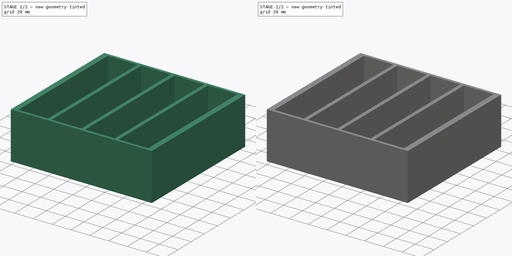
[diagram: build sequence overview — one tinted view per stage of 2, left to right]
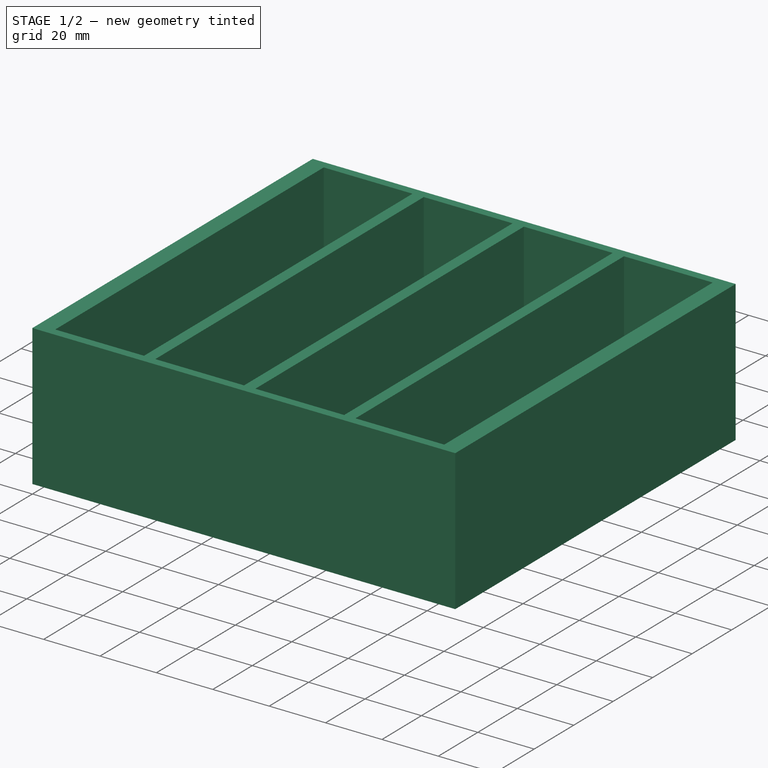
[diagram: stage 1 of 2 — iso view after this stage's code; geometry added in this stage tinted green]
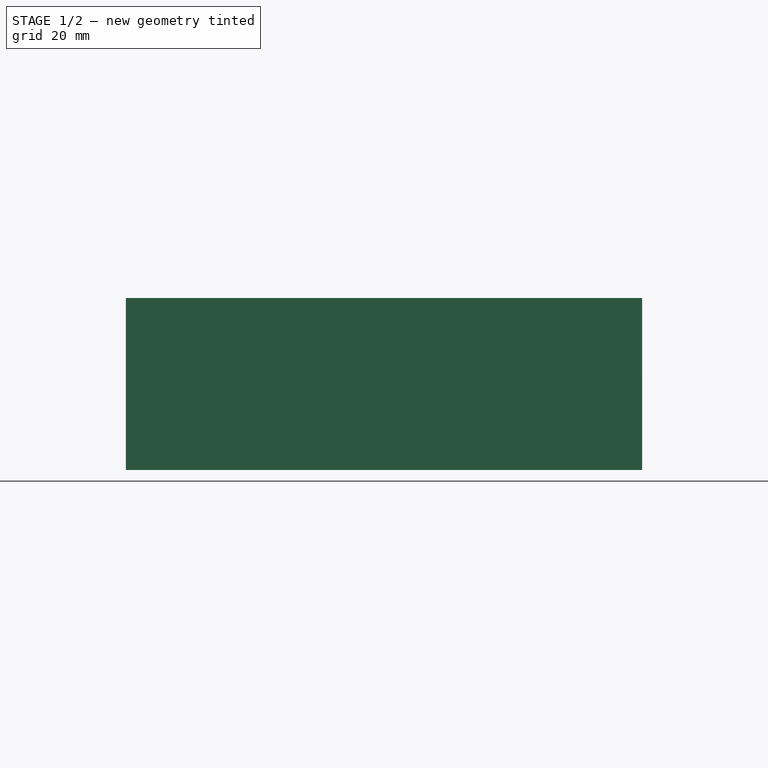
[diagram: stage 1 of 2 — front view after this stage's code; geometry added in this stage tinted green]
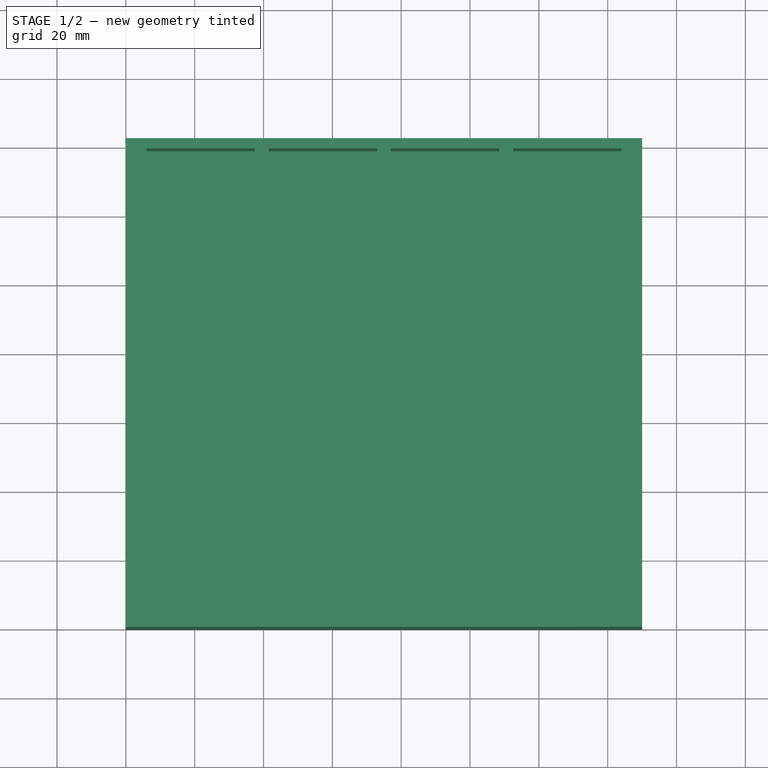
[diagram: stage 1 of 2 — top view after this stage's code; geometry added in this stage tinted green]
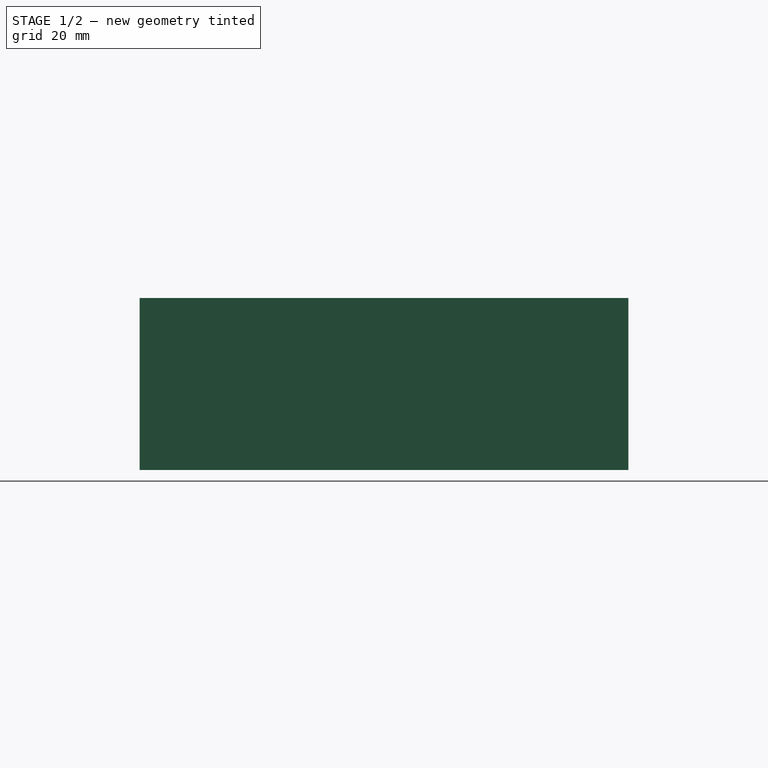
[diagram: stage 1 of 2 — right view after this stage's code; geometry added in this stage tinted green]
FCSTD DOCUMENT  (FreeCAD 0.16R6712 (Git))
Label: batterymount_top
License: All rights reserved
LicenseURL: http://en.wikipedia.org/wiki/All_rights_reserved
objects: Sketcher::SketchObject×3, PartDesign::Pocket×2, PartDesign::Pad×1
note: 9 computed .brp shape members not serialized (recipe doc carries the construction recipe); baked Part::Feature solids carry a one-line shape summary decoded from their .brp

FEATURE [Sketcher::SketchObject] Sketch
  sketch-geometry (4):
    g0: LineSegment StartX=0 StartY=0 StartZ=0 EndX=150 EndY=0 EndZ=0
    g1: LineSegment StartX=150 StartY=0 StartZ=0 EndX=150 EndY=142 EndZ=0
    g2: LineSegment StartX=150 StartY=142 StartZ=0 EndX=0 EndY=142 EndZ=0
    g3: LineSegment StartX=0 StartY=142 StartZ=0 EndX=0 EndY=0 EndZ=0
  constraints (11):
    c: Coincident(g0,g1)
    c: Coincident(g1,g2)
    c: Coincident(g2,g3)
    c: Coincident(g3,g0)
    c: Horizontal(g0)
    c: Horizontal(g2)
    c: Vertical(g1)
    c: Vertical(g3)
    c: Coincident(g0,g-1)
    c: DistanceX(g0,g0) = 150
    c: DistanceY(g3,g3) = 142
FEATURE [PartDesign::Pad] Pad
  Length = 50
  Length2 = 100
  Sketch = -> Sketch
  Type = 0
FEATURE [Sketcher::SketchObject] Sketch001
  Placement = pos=(0,0,50) rot=(0,0,1;0rad)
  Support = -> Pad [Face6]
  sketch-geometry (16):
    g0: LineSegment StartX=6 StartY=139 StartZ=0 EndX=37.5 EndY=139 EndZ=0
    g1: LineSegment StartX=37.5 StartY=139 StartZ=0 EndX=37.5 EndY=3 EndZ=0
    g2: LineSegment StartX=37.5 StartY=3 StartZ=0 EndX=6 EndY=3 EndZ=0
    g3: LineSegment StartX=6 StartY=3 StartZ=0 EndX=6 EndY=139 EndZ=0
    g4: LineSegment StartX=41.5 StartY=139 StartZ=0 EndX=73 EndY=139 EndZ=0
    g5: LineSegment StartX=73 StartY=139 StartZ=0 EndX=73 EndY=3 EndZ=0
    g6: LineSegment StartX=73 StartY=3 StartZ=0 EndX=41.5 EndY=3 EndZ=0
    g7: LineSegment StartX=41.5 StartY=3 StartZ=0 EndX=41.5 EndY=139 EndZ=0
    g8: LineSegment StartX=77 StartY=139 StartZ=0 EndX=108.5 EndY=139 EndZ=0
    g9: LineSegment StartX=108.5 StartY=139 StartZ=0 EndX=108.5 EndY=3 EndZ=0
    g10: LineSegment StartX=108.5 StartY=3 StartZ=0 EndX=77 EndY=3 EndZ=0
    g11: LineSegment StartX=77 StartY=3 StartZ=0 EndX=77 EndY=139 EndZ=0
    g12: LineSegment StartX=112.5 StartY=139 StartZ=0 EndX=144 EndY=139 EndZ=0
    g13: LineSegment StartX=144 StartY=139 StartZ=0 EndX=144 EndY=3 EndZ=0
    g14: LineSegment StartX=144 StartY=3 StartZ=0 EndX=112.5 EndY=3 EndZ=0
    g15: LineSegment StartX=112.5 StartY=3 StartZ=0 EndX=112.5 EndY=139 EndZ=0
  constraints (48):
    c: Coincident(g0,g1)
    c: Coincident(g1,g2)
    c: Coincident(g2,g3)
    c: Coincident(g3,g0)
    c: Horizontal(g0)
    c: Horizontal(g2)
    c: Vertical(g1)
    c: Vertical(g3)
    c: Coincident(g4,g5)
    c: Coincident(g5,g6)
    c: Coincident(g6,g7)
    c: Coincident(g7,g4)
    c: Horizontal(g4)
    c: Horizontal(g6)
    c: Vertical(g5)
    c: Vertical(g7)
    c: Coincident(g8,g9)
    c: Coincident(g9,g10)
    c: Coincident(g10,g11)
    c: Coincident(g11,g8)
    c: Horizontal(g8)
    c: Horizontal(g10)
    c: Vertical(g9)
    c: Vertical(g11)
    c: Coincident(g12,g13)
    c: Coincident(g13,g14)
    c: Coincident(g14,g15)
    c: Coincident(g15,g12)
    c: Horizontal(g12)
    c: Horizontal(g14)
    c: Vertical(g13)
    c: Vertical(g15)
    c: Equal(g7,g3)
    c: Equal(g3,g11)
    c: Equal(g11,g15)
    c: DistanceX(g-1,g2) = 6
    c: DistanceX(g2,g2) = 31.5
    c: Equal(g2,g6)
    c: Equal(g6,g10)
    c: Equal(g10,g14)
    c: DistanceX(g1,g6) = 4
    c: DistanceY(g3,g3) = 136
    c: DistanceY(g-1,g2) = 3
    c: DistanceY(g-1,g6) = 3
    c: DistanceY(g-1,g10) = 3
    c: DistanceX(g5,g10) = 4
    c: DistanceY(g14) = 3
    c: DistanceX(g9,g14) = 4
FEATURE [PartDesign::Pocket] Pocket
  Length = 45
  Sketch = -> Sketch001
  Type = 0
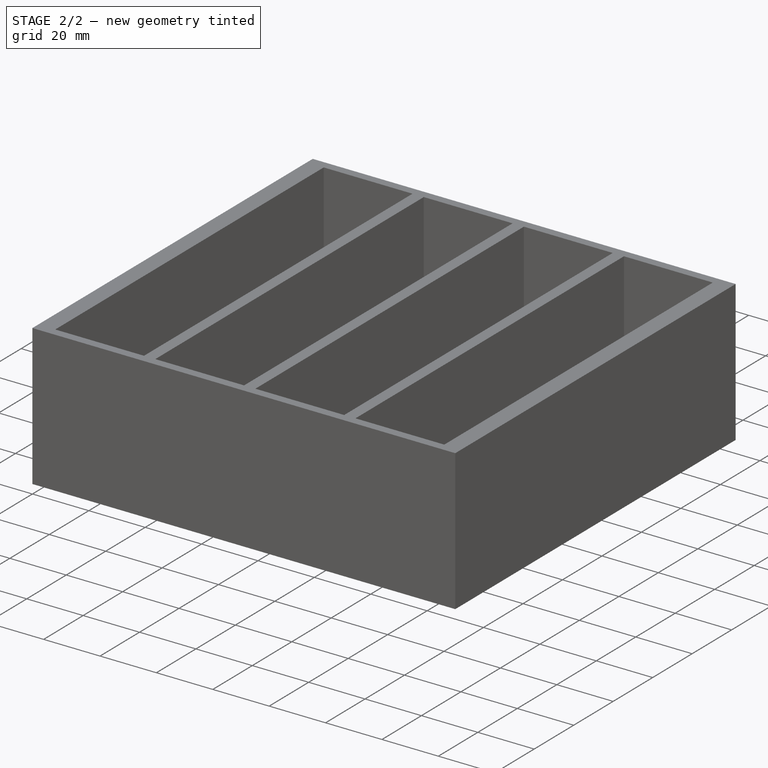
[diagram: stage 2 of 2 — iso view after this stage's code; geometry added in this stage tinted green]
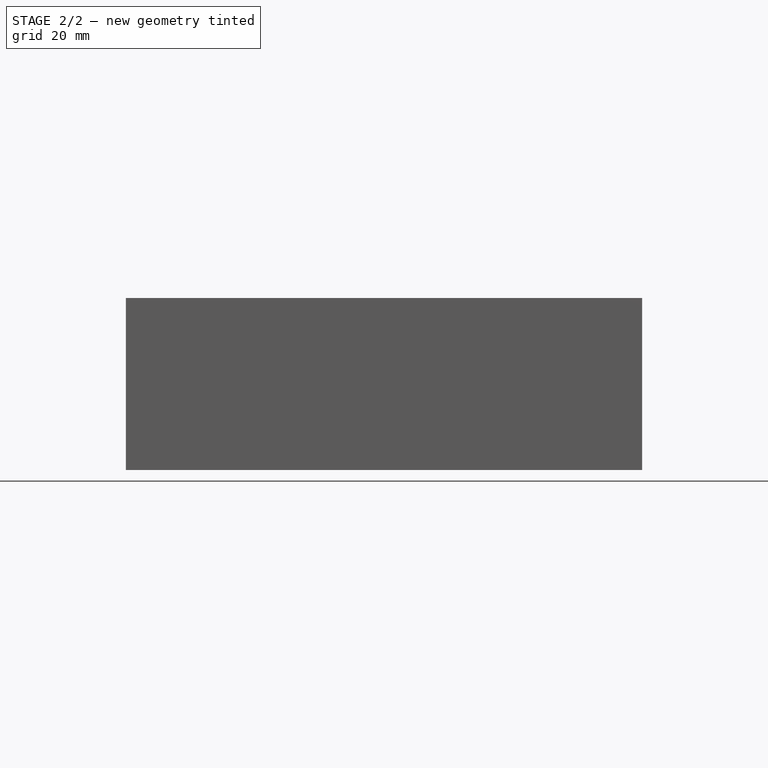
[diagram: stage 2 of 2 — front view after this stage's code; geometry added in this stage tinted green]
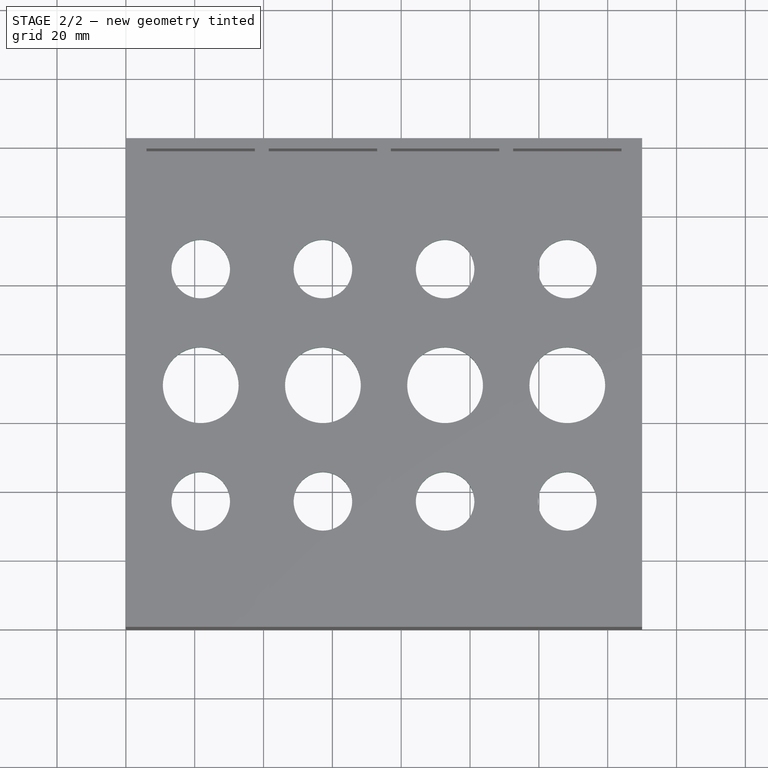
[diagram: stage 2 of 2 — top view after this stage's code; geometry added in this stage tinted green]
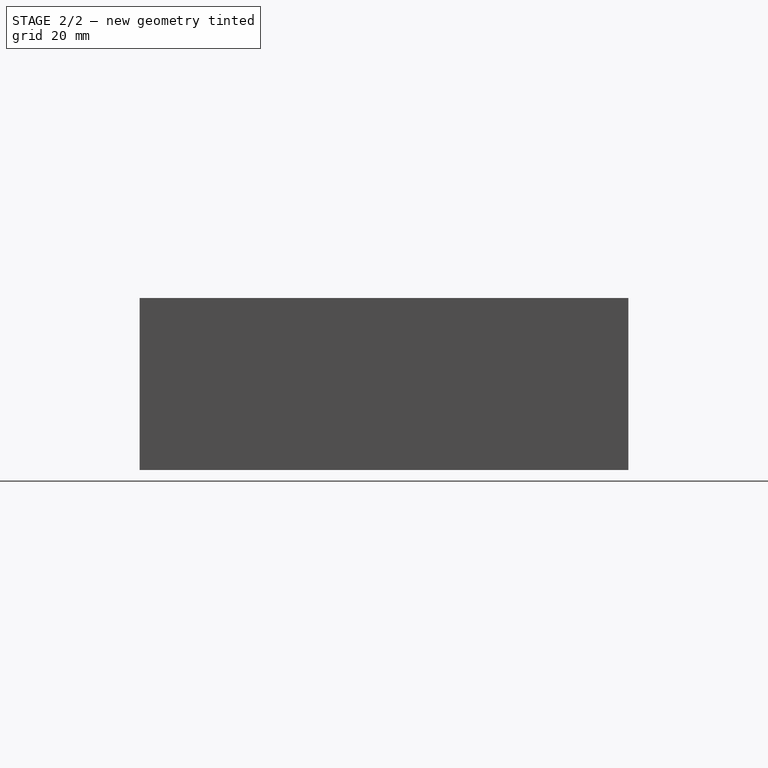
[diagram: stage 2 of 2 — right view after this stage's code; geometry added in this stage tinted green]
FEATURE [Sketcher::SketchObject] Sketch002
  Placement = pos=(0,0,5) rot=(0,0,1;0rad)
  Support = -> Pocket [Face26]
  sketch-geometry (12):
    g0: Circle CenterX=21.75 CenterY=37.25 CenterZ=0 NormalX=0 NormalY=0 NormalZ=1 Radius=8.5
    g1: Circle CenterX=21.75 CenterY=71 CenterZ=0 NormalX=0 NormalY=0 NormalZ=1 Radius=11
    g2: Circle CenterX=21.75 CenterY=104.75 CenterZ=0 NormalX=0 NormalY=0 NormalZ=1 Radius=8.5
    g3: Circle CenterX=57.25 CenterY=37.25 CenterZ=0 NormalX=0 NormalY=0 NormalZ=1 Radius=8.5
    g4: Circle CenterX=57.25 CenterY=71 CenterZ=0 NormalX=0 NormalY=0 NormalZ=1 Radius=11
    g5: Circle CenterX=57.25 CenterY=104.75 CenterZ=0 NormalX=0 NormalY=0 NormalZ=1 Radius=8.5
    g6: Circle CenterX=92.75 CenterY=37.25 CenterZ=0 NormalX=0 NormalY=0 NormalZ=1 Radius=8.5
    g7: Circle CenterX=92.75 CenterY=71 CenterZ=0 NormalX=0 NormalY=0 NormalZ=1 Radius=11
    g8: Circle CenterX=92.75 CenterY=104.75 CenterZ=0 NormalX=0 NormalY=0 NormalZ=1 Radius=8.5
    g9: Circle CenterX=128.25 CenterY=37.25 CenterZ=0 NormalX=0 NormalY=0 NormalZ=1 Radius=8.5
    g10: Circle CenterX=128.25 CenterY=71 CenterZ=0 NormalX=0 NormalY=0 NormalZ=1 Radius=11
    g11: Circle CenterX=128.25 CenterY=104.75 CenterZ=0 NormalX=0 NormalY=0 NormalZ=1 Radius=8.5
  constraints (36):
    c: Radius(g0) = 8.5
    c: Radius(g1) = 11
    c: Equal(g0,g3)
    c: Equal(g0,g6)
    c: Equal(g6,g9)
    c: Equal(g9,g11)
    c: Equal(g11,g8)
    c: Equal(g8,g5)
    c: Equal(g5,g2)
    c: DistanceX(g-1,g0) = 21.75
    c: DistanceY(g-1,g0) = 37.25
    c: DistanceY(g-1,g3) = 37.25
    c: DistanceY(g-1,g6) = 37.25
    c: DistanceY(g-1,g9) = 37.25
    c: DistanceY(g-1,g1) = 71
    c: DistanceX(g-1,g1) = 21.75
    c: Equal(g7,g4)
    c: Equal(g4,g1)
    c: Equal(g1,g10)
    c: DistanceY(g-1,g2) = 104.75
    c: DistanceX(g0,g3) = 35.5
    c: DistanceX(g3,g6) = 35.5
    c: DistanceX(g6,g9) = 35.5
    c: DistanceX(g1,g4) = 35.5
    c: DistanceY(g-1,g7) = 71
    c: DistanceY(g-1,g4) = 71
    c: DistanceY(g-1,g10) = 71
    c: DistanceX(g4,g7) = 35.5
    c: DistanceX(g7,g10) = 35.5
    c: DistanceX(g-1,g2) = 21.75
    c: DistanceY(g-1,g5) = 104.75
    c: DistanceY(g-1,g8) = 104.75
    c: DistanceY(g-1,g11) = 104.75
    c: DistanceX(g2,g5) = 35.5
    c: DistanceX(g5,g8) = 35.5
    c: DistanceX(g8,g11) = 35.5
FEATURE [PartDesign::Pocket] Pocket001
  Length = 5
  Sketch = -> Sketch002
  Type = 2
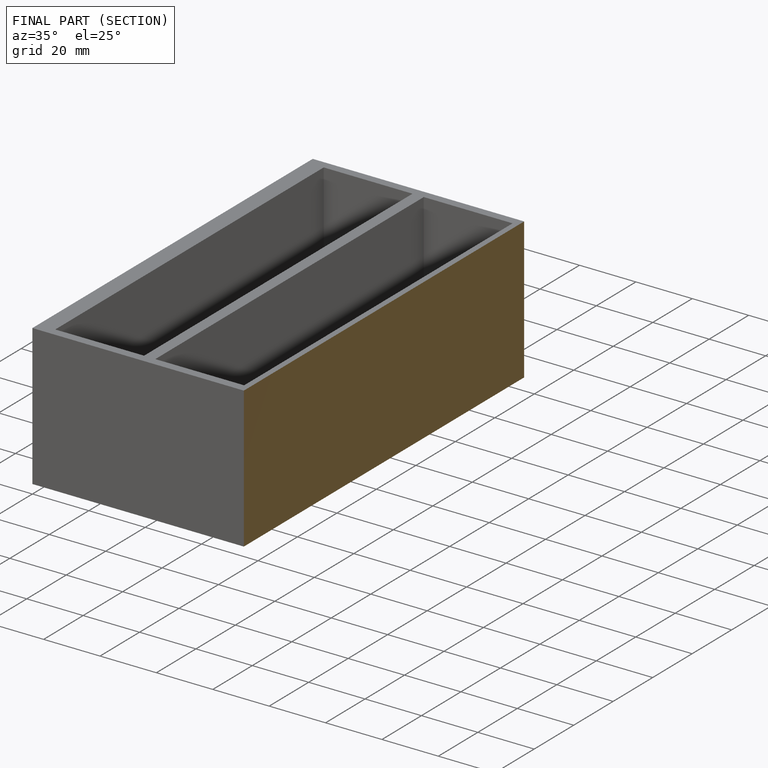
[diagram: finished part — half-section view (interior)]
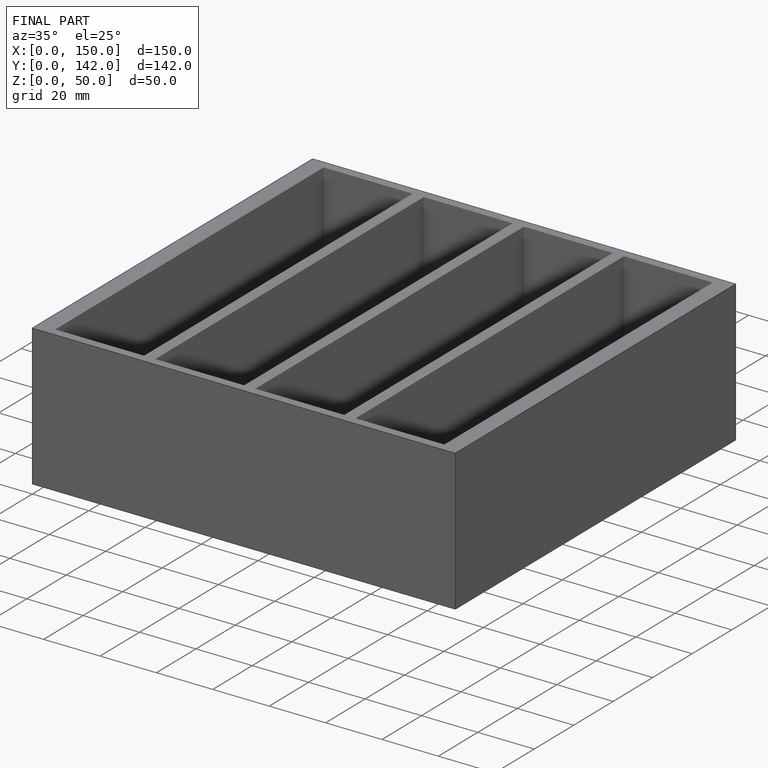
[diagram: finished part — iso view with bounding-box wireframe]
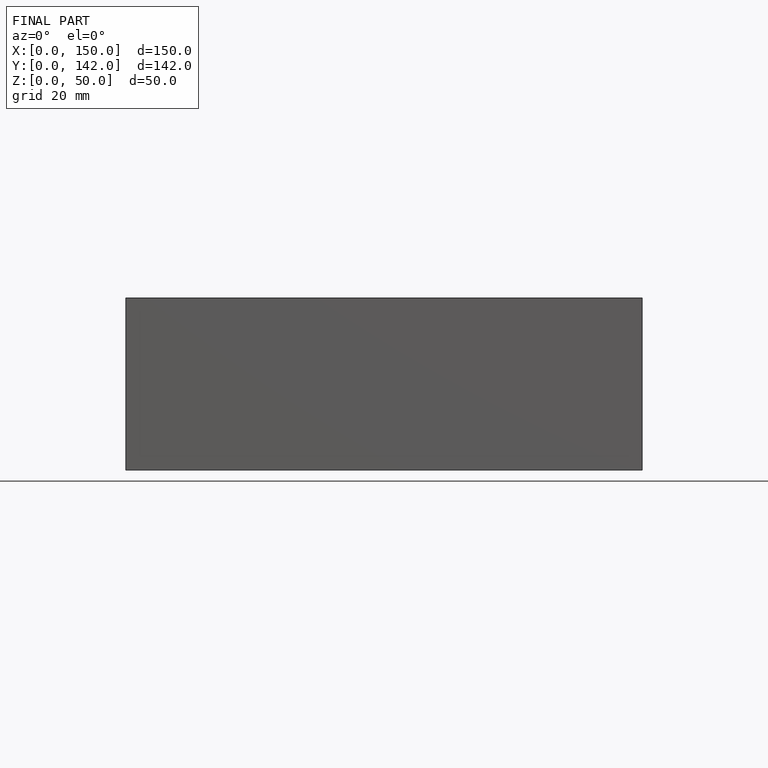
[diagram: finished part — front view with bounding-box wireframe]
